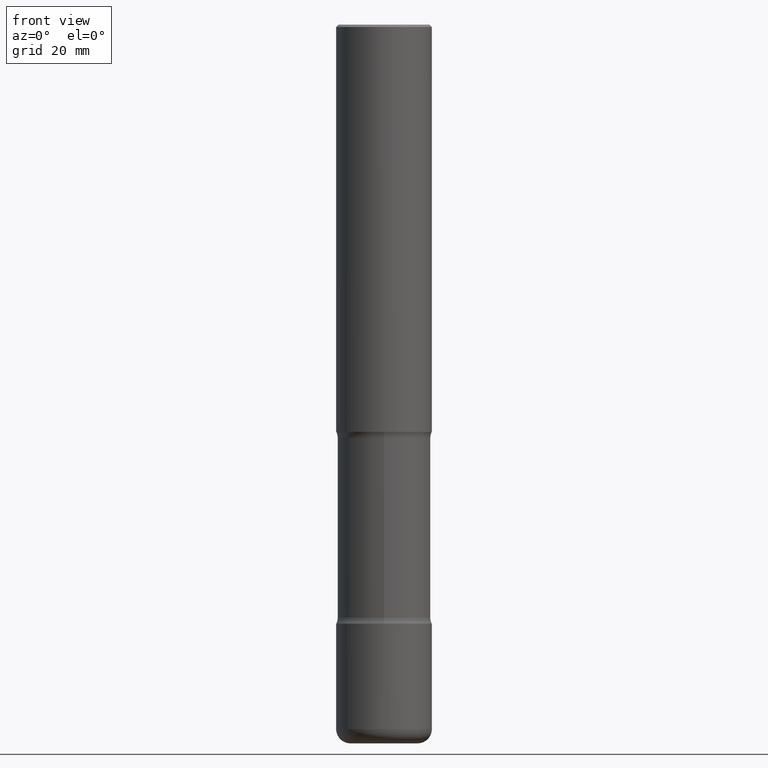
[diagram: clean part render]
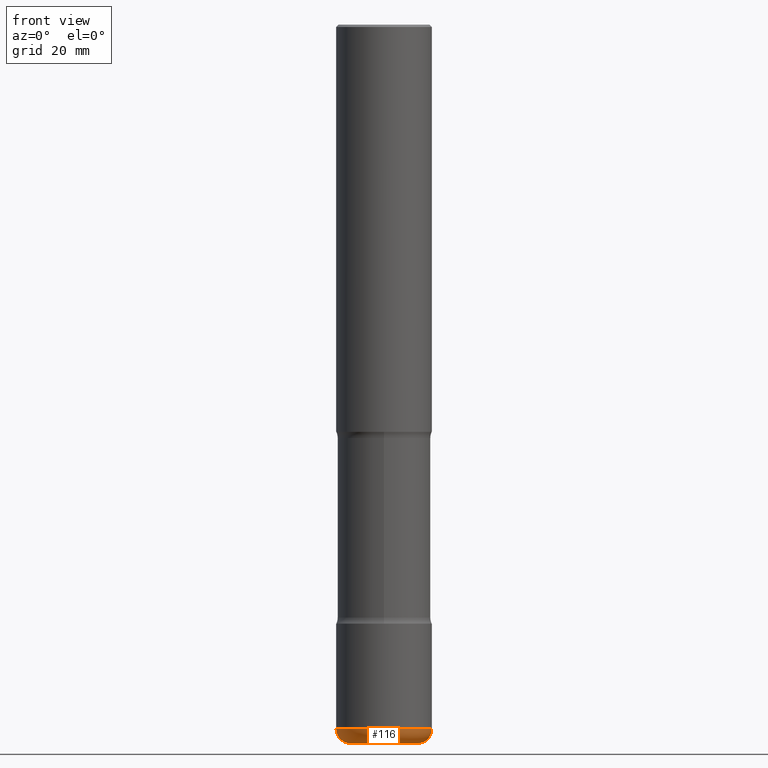
[diagram: same view with one face highlighted and labeled with its STEP entity id]
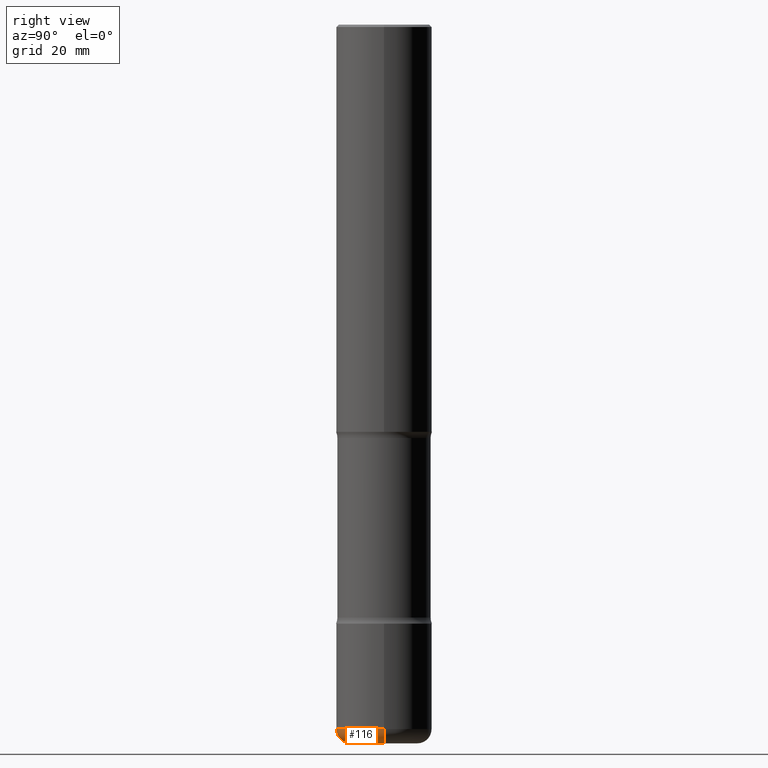
[diagram: same view with one face highlighted and labeled with its STEP entity id]
A machine part, front view. The second image highlights one B-rep face of the part: STEP entity #116.
A second angle (right view) of the same face is appended — the face is thin or edge-on in the first view.
In plain terms, the highlighted toroidal blend (fillet) surface has major radius 7.0002 mm and minor (blend) radius 2.9997 mm.
Its self-contained STEP definition (entity closure, byte-faithful):
#11 = EDGE_LOOP ( 'NONE', ( #501, #98, #341, #439 ) ) ;
#21 = VERTEX_POINT ( 'NONE', #380 ) ;
#53 = EDGE_CURVE ( 'NONE', #399, #308, #57, .T. ) ;
#57 = CIRCLE ( 'NONE', #489, 0.3937000000000002720 ) ;
#75 = EDGE_CURVE ( 'NONE', #21, #308, #153, .T. ) ;
#98 = ORIENTED_EDGE ( 'NONE', *, *, #219, .T. ) ;
#116 = ADVANCED_FACE ( 'NONE', ( #475 ), #238, .T. ) ;
#134 = CARTESIAN_POINT ( 'NONE',  ( -0.2756000000000003447, -1.824834332066598125E-14, -5.787399999999999878 ) ) ;
#138 = DIRECTION ( 'NONE',  ( 1.000000000000000000, -6.982962677686261977E-15, 0.000000000000000000 ) ) ;
#142 = DIRECTION ( 'NONE',  ( -2.445468806185136597E-29, 3.491481338843145583E-15, 1.000000000000000000 ) ) ;
#149 = CARTESIAN_POINT ( 'NONE',  ( -0.3937000000000003830, -1.740919234973330226E-14, -5.787399999999999878 ) ) ;
#153 = CIRCLE ( 'NONE', #470, 0.1181000000000000383 ) ;
#184 = CARTESIAN_POINT ( 'NONE',  ( 1.415290616891585994E-28, -2.020659910042081941E-14, -5.787399999999999878 ) ) ;
#194 = AXIS2_PLACEMENT_3D ( 'NONE', #487, #522, #138 ) ;
#219 = EDGE_CURVE ( 'NONE', #442, #21, #244, .T. ) ;
#220 = DIRECTION ( 'NONE',  ( -1.000000000000000000, 7.105427357601001859E-15, 0.000000000000000000 ) ) ;
#224 = DIRECTION ( 'NONE',  ( -6.982962677686266711E-15, -1.000000000000000000, 3.491481338843145583E-15 ) ) ;
#238 = TOROIDAL_SURFACE ( 'NONE', #445, 0.2756000000000003447, 0.1180999999999999966 ) ;
#244 = CIRCLE ( 'NONE', #194, 0.2756000000000001782 ) ;
#260 = DIRECTION ( 'NONE',  ( 1.000000000000000000, -6.982962677686263555E-15, 0.000000000000000000 ) ) ;
#273 = CARTESIAN_POINT ( 'NONE',  ( 0.2756000000000003447, -2.213110361439115752E-14, -5.787399999999999878 ) ) ;
#308 = VERTEX_POINT ( 'NONE', #434 ) ;
#309 = DIRECTION ( 'NONE',  ( 7.105427357601001859E-15, 1.000000000000000000, -3.491481338843145583E-15 ) ) ;
#341 = ORIENTED_EDGE ( 'NONE', *, *, #75, .T. ) ;
#371 = EDGE_CURVE ( 'NONE', #442, #399, #460, .T. ) ;
#380 = CARTESIAN_POINT ( 'NONE',  ( 0.2756000000000001782, -2.254344756050852692E-14, -5.905499999999999972 ) ) ;
#384 = CARTESIAN_POINT ( 'NONE',  ( -0.2756000000000001782, -1.803493980825833276E-14, -5.905499999999999972 ) ) ;
#393 = DIRECTION ( 'NONE',  ( -2.445468806185136597E-29, 3.491481338843145583E-15, 1.000000000000000000 ) ) ;
#399 = VERTEX_POINT ( 'NONE', #149 ) ;
#434 = CARTESIAN_POINT ( 'NONE',  ( 0.3937000000000003830, -2.295579150662590263E-14, -5.787399999999999878 ) ) ;
#439 = ORIENTED_EDGE ( 'NONE', *, *, #53, .F. ) ;
#441 = DIRECTION ( 'NONE',  ( 1.000000000000000000, -6.982962677686261977E-15, 4.883557194083110659E-29 ) ) ;
#442 = VERTEX_POINT ( 'NONE', #384 ) ;
#445 = AXIS2_PLACEMENT_3D ( 'NONE', #184, #142, #441 ) ;
#460 = CIRCLE ( 'NONE', #484, 0.1181000000000000383 ) ;
#470 = AXIS2_PLACEMENT_3D ( 'NONE', #273, #224, #478 ) ;
#475 = FACE_OUTER_BOUND ( 'NONE', #11, .T. ) ;
#478 = DIRECTION ( 'NONE',  ( 1.000000000000000000, -6.982962677686270655E-15, 0.000000000000000000 ) ) ;
#484 = AXIS2_PLACEMENT_3D ( 'NONE', #134, #309, #220 ) ;
#487 = CARTESIAN_POINT ( 'NONE',  ( 1.444171603492632270E-28, -2.061894304653819197E-14, -5.905499999999999972 ) ) ;
#489 = AXIS2_PLACEMENT_3D ( 'NONE', #510, #393, #260 ) ;
#501 = ORIENTED_EDGE ( 'NONE', *, *, #371, .F. ) ;
#510 = CARTESIAN_POINT ( 'NONE',  ( 1.415290616891585994E-28, -2.020659910042081941E-14, -5.787399999999999878 ) ) ;
#522 = DIRECTION ( 'NONE',  ( -2.445468806185136597E-29, 3.491481338843145583E-15, 1.000000000000000000 ) ) ;